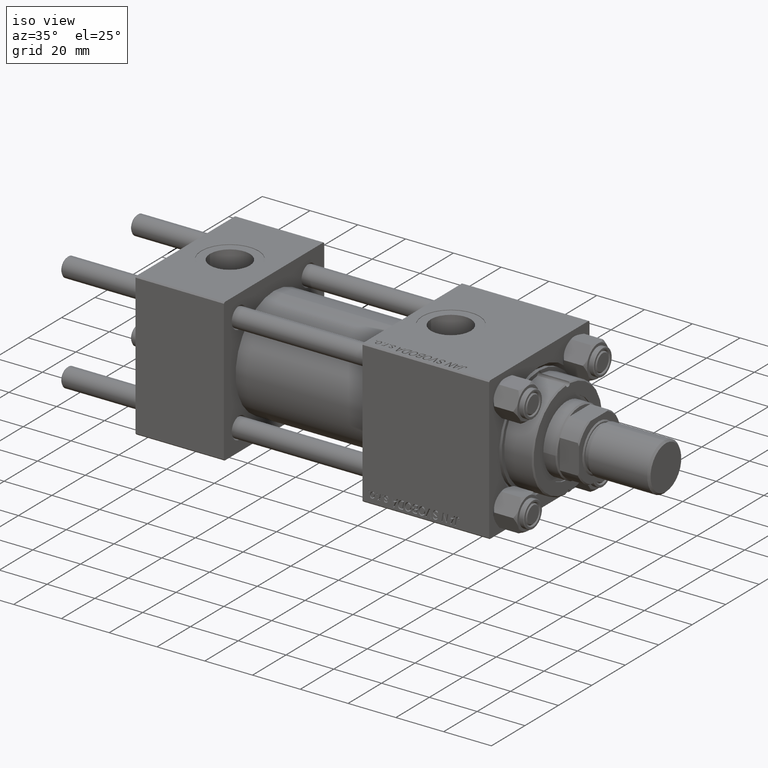
[diagram: clean part render]
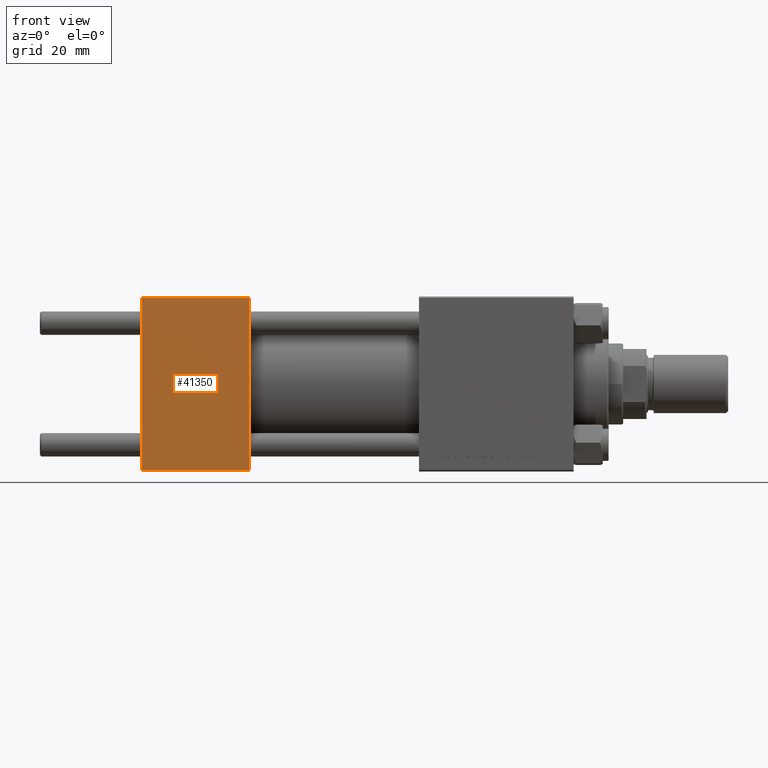
[diagram: tour spotlight — one face highlighted and labeled with its STEP entity id]
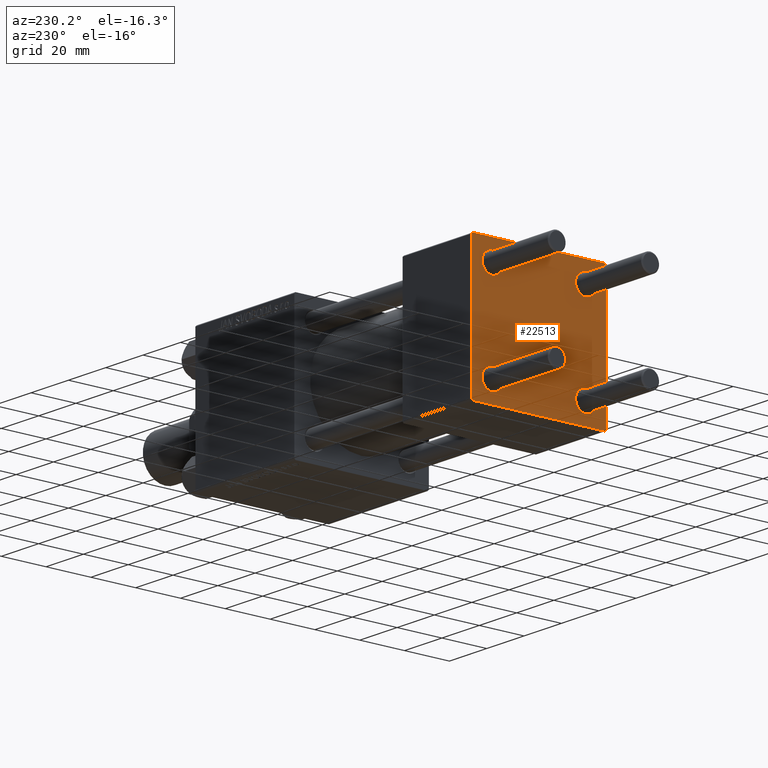
[diagram: tour spotlight — one face highlighted and labeled with its STEP entity id]
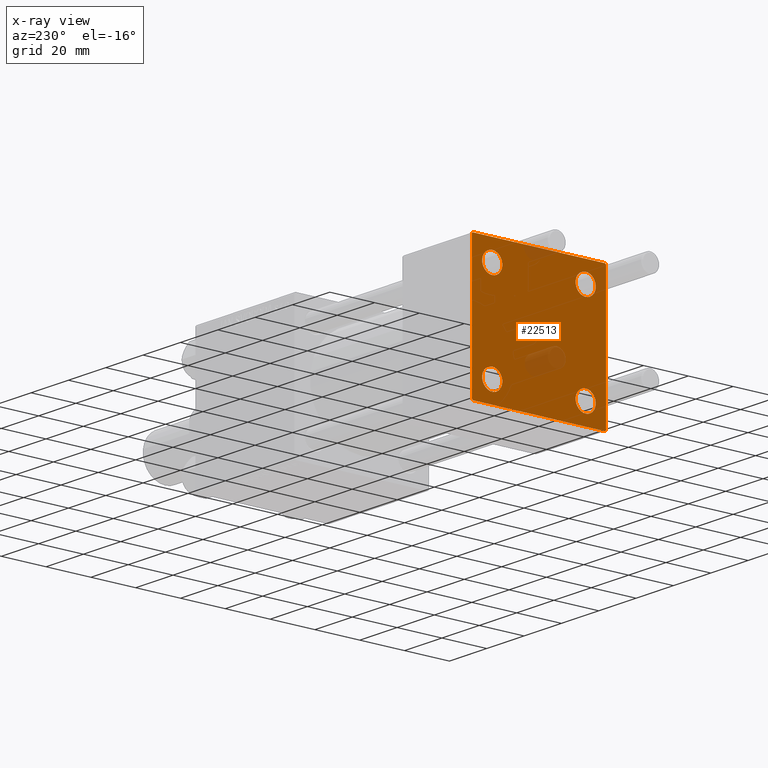
[diagram: x-ray of the same camera — body ghosted, this tour face saturated]
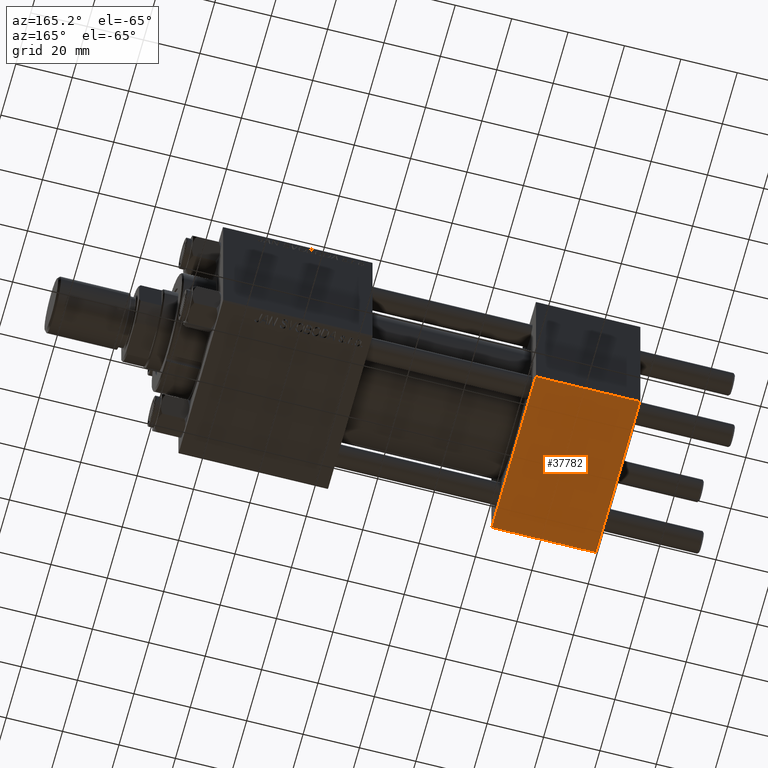
[diagram: tour spotlight — one face highlighted and labeled with its STEP entity id]
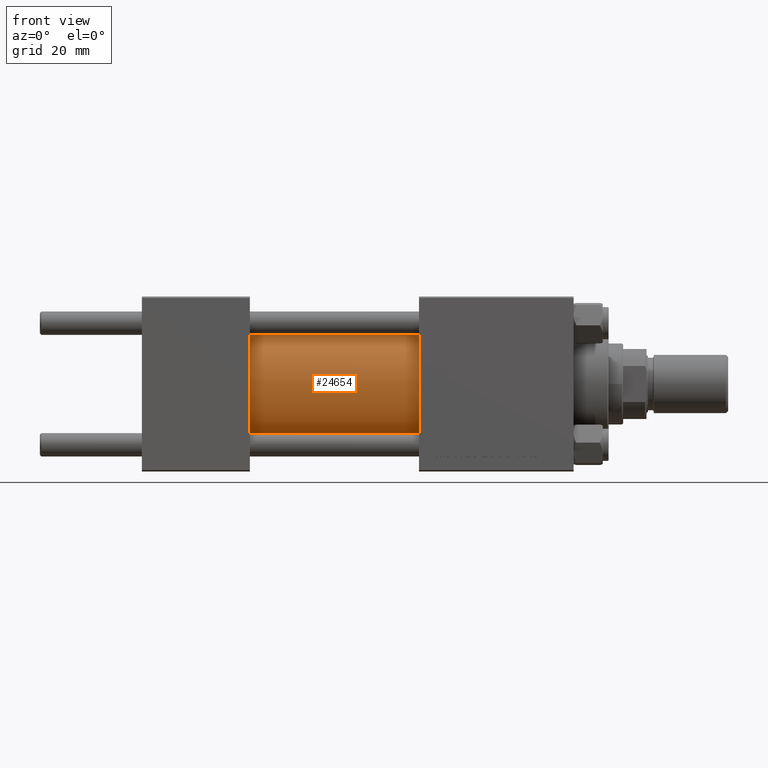
[diagram: tour spotlight — one face highlighted and labeled with its STEP entity id]
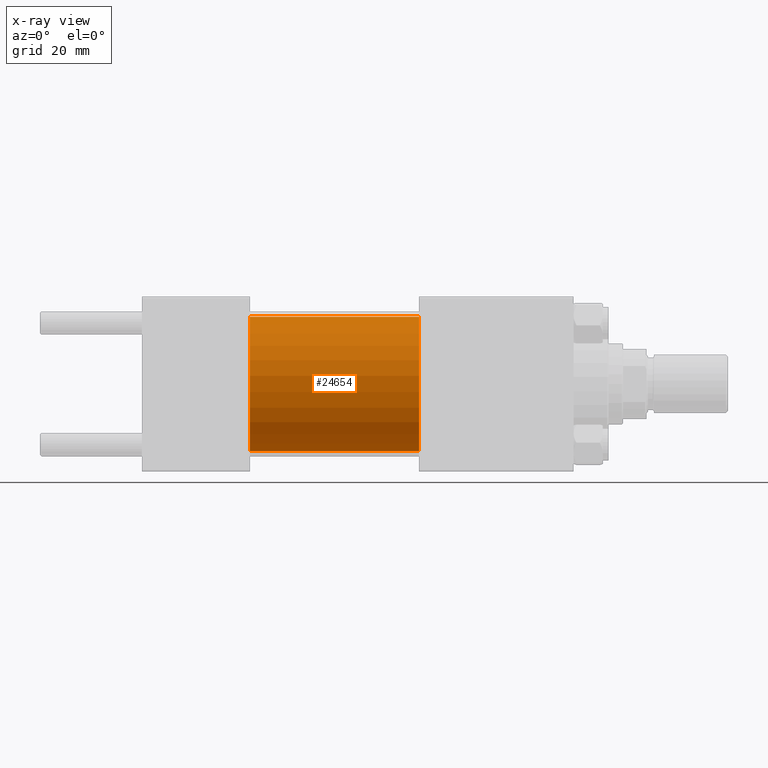
[diagram: x-ray of the same camera — body ghosted, this tour face saturated]
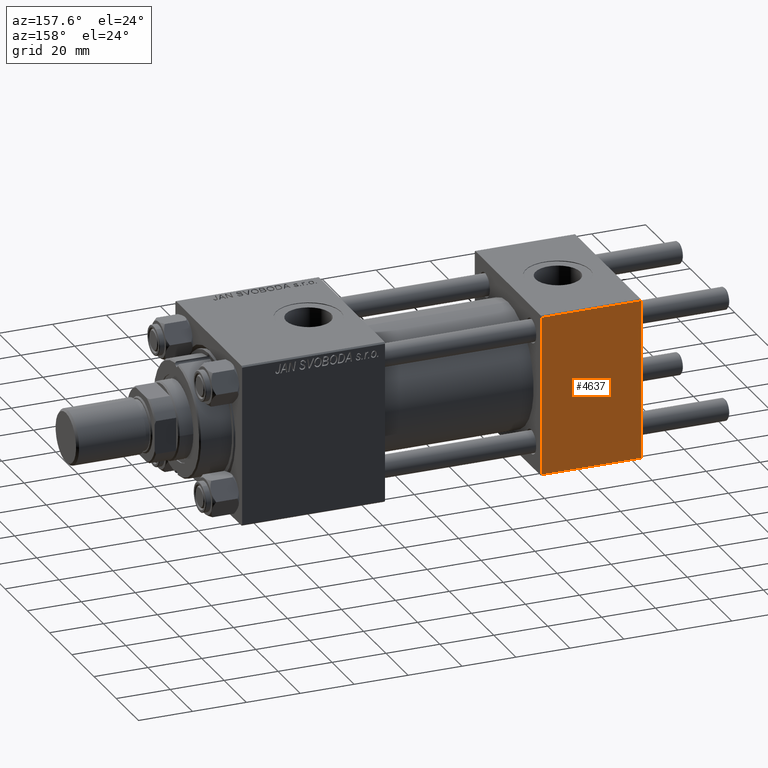
[diagram: tour spotlight — one face highlighted and labeled with its STEP entity id]
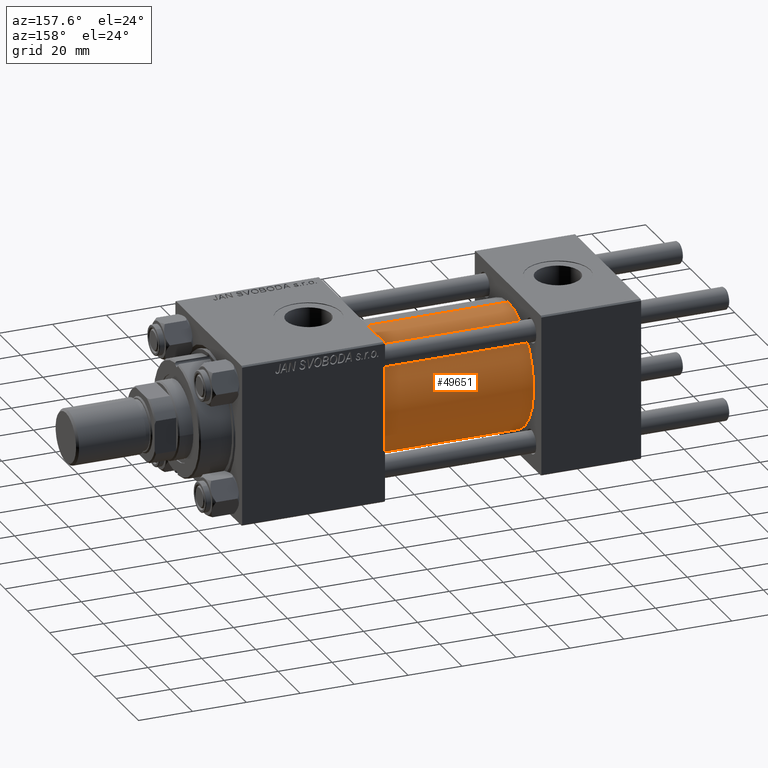
[diagram: tour spotlight — one face highlighted and labeled with its STEP entity id]
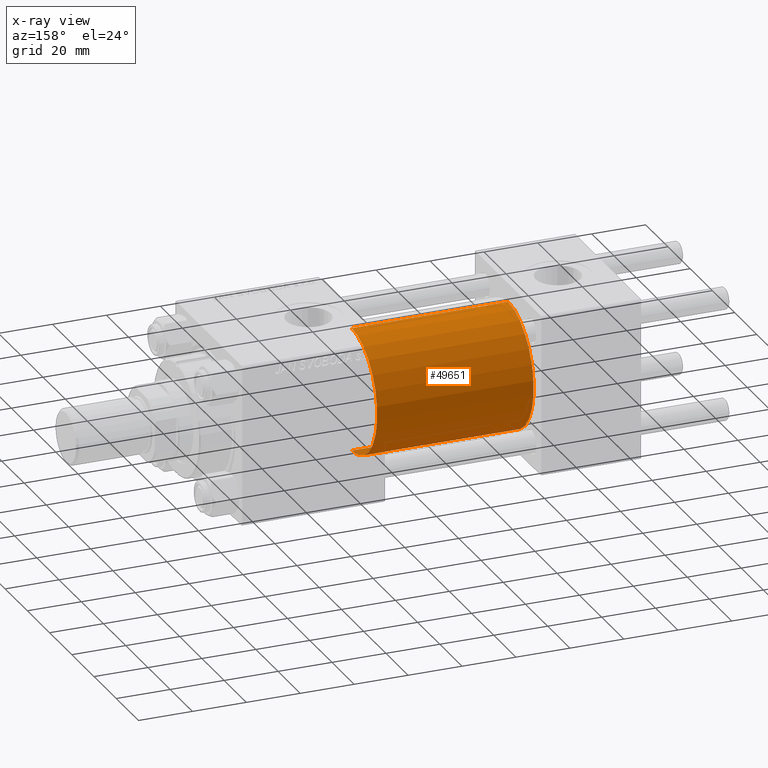
[diagram: x-ray of the same camera — body ghosted, this tour face saturated]
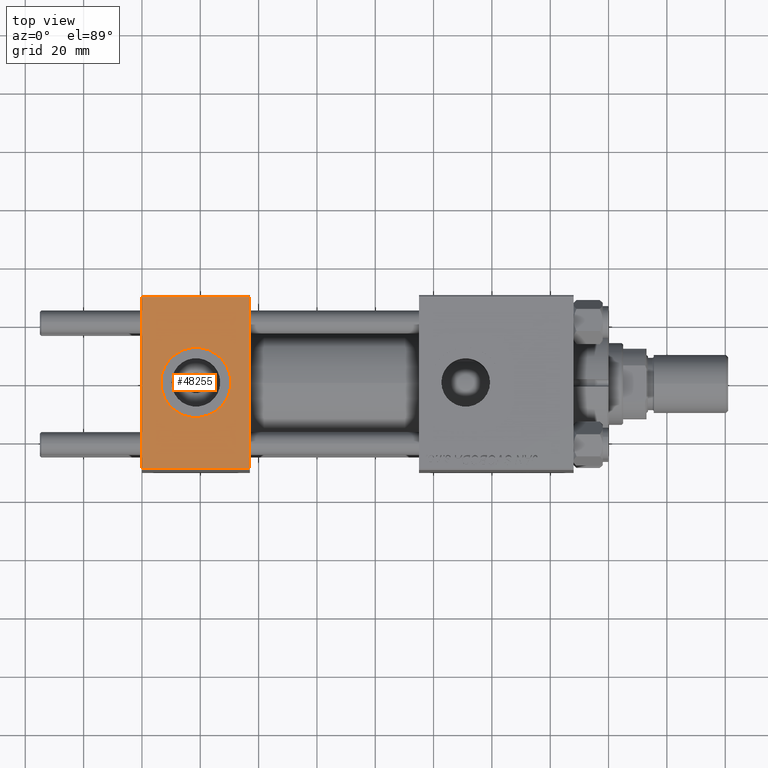
[diagram: tour spotlight — one face highlighted and labeled with its STEP entity id]
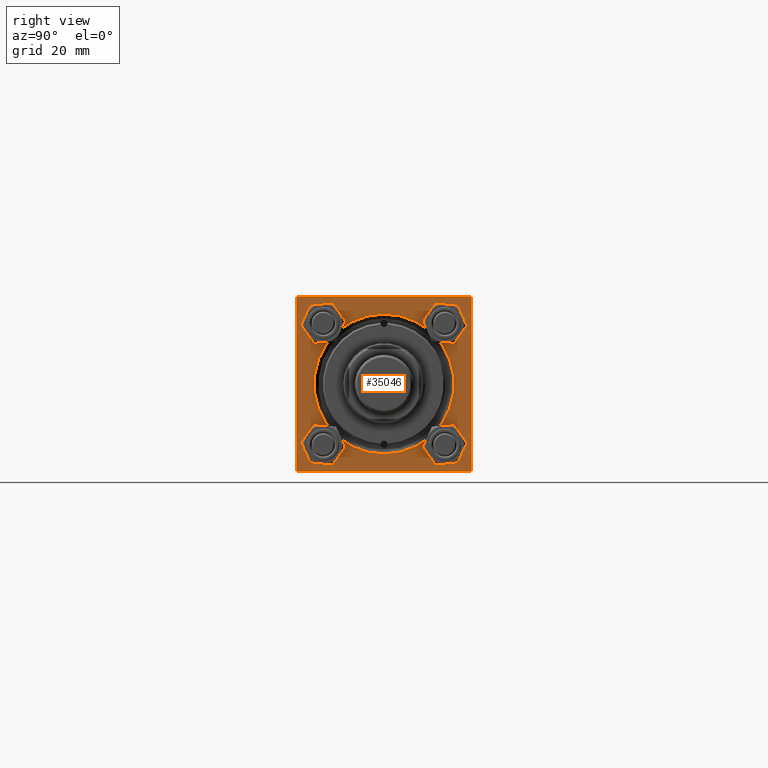
[diagram: tour spotlight — one face highlighted and labeled with its STEP entity id]
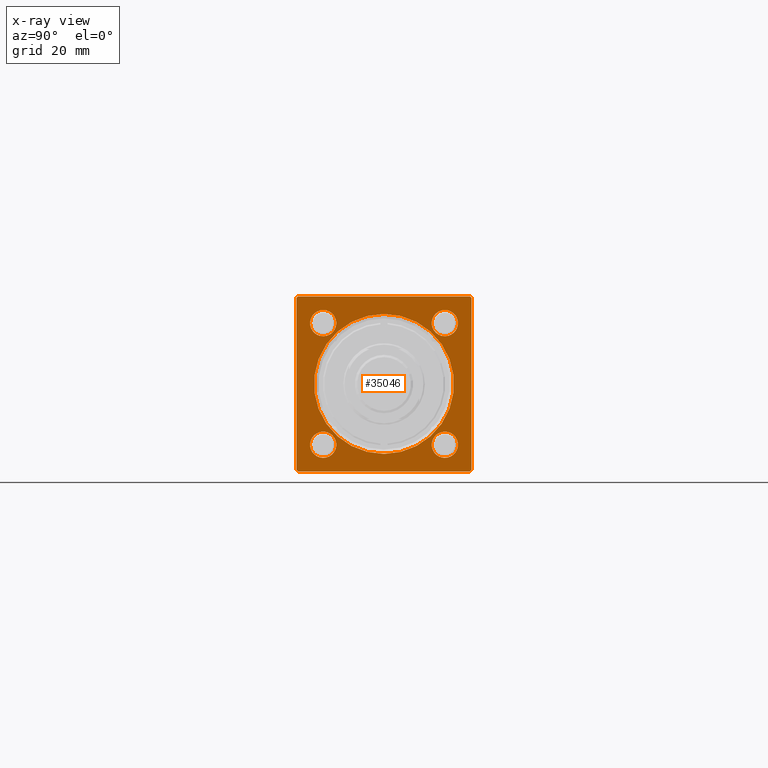
[diagram: x-ray of the same camera — body ghosted, this tour face saturated]
A machine part: a face-by-face anatomy tour. The part has 1155 B-rep faces; the first image is the clean iso view, then the 8 largest visible faces are spotlighted one at a time (largest first), each with its STEP entity span.

Face 1 — front view, entity #41350. In plain terms, the highlighted planar face has unit normal (0, 1, 0).
Definition (entity closure, byte-faithful):
#507 = DIRECTION ( 'NONE',  ( 0.000000000000000000, 0.000000000000000000, -1.000000000000000000 ) ) ;
#1686 = VERTEX_POINT ( 'NONE', #41008 ) ;
#1882 = FACE_OUTER_BOUND ( 'NONE', #29447, .T. ) ;
#2939 = ORIENTED_EDGE ( 'NONE', *, *, #29339, .F. ) ;
#3004 = DIRECTION ( 'NONE',  ( 1.000000000000000000, 0.000000000000000000, 0.000000000000000000 ) ) ;
#6061 = VECTOR ( 'NONE', #507, 1000.000000000000000 ) ;
#7319 = VERTEX_POINT ( 'NONE', #22423 ) ;
#8425 = CARTESIAN_POINT ( 'NONE',  ( 0.000000000000000000, -30.00000000000000000, 29.99999999999999289 ) ) ;
#9057 = CARTESIAN_POINT ( 'NONE',  ( 37.00000000000000000, -30.00000000000000000, 29.49999999999999289 ) ) ;
#11617 = ORIENTED_EDGE ( 'NONE', *, *, #37327, .T. ) ;
#11673 = CARTESIAN_POINT ( 'NONE',  ( 37.00000000000000000, -30.00000000000000000, -29.50000000000001776 ) ) ;
#14316 = AXIS2_PLACEMENT_3D ( 'NONE', #25167, #37436, #25912 ) ;
#14954 = VECTOR ( 'NONE', #43460, 1000.000000000000000 ) ;
#18518 = VECTOR ( 'NONE', #3004, 1000.000000000000000 ) ;
#21334 = LINE ( 'NONE', #9057, #46362 ) ;
#22423 = CARTESIAN_POINT ( 'NONE',  ( 0.000000000000000000, -30.00000000000000000, 29.49999999999999289 ) ) ;
#23619 = CARTESIAN_POINT ( 'NONE',  ( 0.000000000000000000, -30.00000000000000000, -29.50000000000001776 ) ) ;
#23800 = LINE ( 'NONE', #35554, #6061 ) ;
#25167 = CARTESIAN_POINT ( 'NONE',  ( 37.00000000000000000, -30.00000000000000000, 29.99999999999999289 ) ) ;
#25912 = DIRECTION ( 'NONE',  ( 0.000000000000000000, -0.000000000000000000, 1.000000000000000000 ) ) ;
#28465 = VERTEX_POINT ( 'NONE', #31593 ) ;
#29339 = EDGE_CURVE ( 'NONE', #28465, #1686, #23800, .T. ) ;
#29447 = EDGE_LOOP ( 'NONE', ( #11617, #41408, #2939, #39552 ) ) ;
#31593 = CARTESIAN_POINT ( 'NONE',  ( 37.00000000000000000, -30.00000000000000000, 29.49999999999999289 ) ) ;
#33848 = PLANE ( 'NONE',  #14316 ) ;
#35554 = CARTESIAN_POINT ( 'NONE',  ( 37.00000000000000000, -30.00000000000000000, 29.99999999999999289 ) ) ;
#37327 = EDGE_CURVE ( 'NONE', #7319, #47257, #50368, .T. ) ;
#37436 = DIRECTION ( 'NONE',  ( -0.000000000000000000, 1.000000000000000000, 0.000000000000000000 ) ) ;
#39552 = ORIENTED_EDGE ( 'NONE', *, *, #50322, .T. ) ;
#39742 = DIRECTION ( 'NONE',  ( -1.000000000000000000, 0.000000000000000000, 0.000000000000000000 ) ) ;
#41008 = CARTESIAN_POINT ( 'NONE',  ( 37.00000000000000000, -30.00000000000000000, -29.50000000000001776 ) ) ;
#41350 = ADVANCED_FACE ( 'NONE', ( #1882 ), #33848, .F. ) ;
#41408 = ORIENTED_EDGE ( 'NONE', *, *, #43940, .T. ) ;
#43460 = DIRECTION ( 'NONE',  ( 0.000000000000000000, 0.000000000000000000, -1.000000000000000000 ) ) ;
#43940 = EDGE_CURVE ( 'NONE', #47257, #1686, #50036, .T. ) ;
#46362 = VECTOR ( 'NONE', #39742, 1000.000000000000000 ) ;
#47257 = VERTEX_POINT ( 'NONE', #23619 ) ;
#50036 = LINE ( 'NONE', #11673, #18518 ) ;
#50322 = EDGE_CURVE ( 'NONE', #28465, #7319, #21334, .T. ) ;
#50368 = LINE ( 'NONE', #8425, #14954 ) ;

Face 2 — auxiliary view, entity #22513. An x-ray twin of the same camera follows (body ghosted, this face saturated) — the face is partly hidden behind the body. In plain terms, the highlighted planar face has unit normal (-1, 0, 0).
Definition (entity closure, byte-faithful):
#73 = DIRECTION ( 'NONE',  ( 1.000000000000000000, -0.000000000000000000, 0.000000000000000000 ) ) ;
#437 = CARTESIAN_POINT ( 'NONE',  ( 0.000000000000000000, -20.84999999999999076, 20.85000000000000497 ) ) ;
#1634 = DIRECTION ( 'NONE',  ( 0.000000000000000000, 0.000000000000000000, 1.000000000000000000 ) ) ;
#1811 = CARTESIAN_POINT ( 'NONE',  ( 0.000000000000000000, 29.49999999999997868, -30.00000000000000000 ) ) ;
#2761 = VECTOR ( 'NONE', #10723, 999.9999999999998863 ) ;
#2774 = LINE ( 'NONE', #42147, #10519 ) ;
#2924 = VERTEX_POINT ( 'NONE', #18373 ) ;
#3785 = AXIS2_PLACEMENT_3D ( 'NONE', #16691, #13351, #47620 ) ;
#3938 = ORIENTED_EDGE ( 'NONE', *, *, #30027, .T. ) ;
#3949 = VERTEX_POINT ( 'NONE', #35991 ) ;
#3968 = ORIENTED_EDGE ( 'NONE', *, *, #26835, .T. ) ;
#4381 = ORIENTED_EDGE ( 'NONE', *, *, #21127, .F. ) ;
#4415 = CARTESIAN_POINT ( 'NONE',  ( 0.000000000000000000, -20.84999999999999076, -20.85000000000000497 ) ) ;
#5123 = EDGE_CURVE ( 'NONE', #40123, #2924, #2774, .T. ) ;
#5202 = CARTESIAN_POINT ( 'NONE',  ( 0.000000000000000000, -29.50000000000000000, -30.00000000000000711 ) ) ;
#5411 = ORIENTED_EDGE ( 'NONE', *, *, #5669, .T. ) ;
#5508 = CARTESIAN_POINT ( 'NONE',  ( 0.000000000000000000, -20.84999999999999076, 16.34999999999998721 ) ) ;
#5553 = DIRECTION ( 'NONE',  ( 1.000000000000000000, -0.000000000000000000, 0.000000000000000000 ) ) ;
#5647 = ORIENTED_EDGE ( 'NONE', *, *, #37327, .F. ) ;
#5669 = EDGE_CURVE ( 'NONE', #26018, #47257, #49198, .T. ) ;
#5789 = FACE_BOUND ( 'NONE', #45599, .T. ) ;
#5791 = EDGE_CURVE ( 'NONE', #31264, #41874, #30916, .T. ) ;
#6641 = CARTESIAN_POINT ( 'NONE',  ( 0.000000000000000000, 29.74999999999957723, -29.75000000000040501 ) ) ;
#6757 = LINE ( 'NONE', #34371, #21293 ) ;
#7146 = EDGE_LOOP ( 'NONE', ( #35616, #15043, #26856, #5411, #5647, #47945, #4381, #43029 ) ) ;
#7319 = VERTEX_POINT ( 'NONE', #22423 ) ;
#7497 = DIRECTION ( 'NONE',  ( -0.000000000000000000, 0.7071067811865474617, 0.7071067811865474617 ) ) ;
#7545 = AXIS2_PLACEMENT_3D ( 'NONE', #15461, #43327, #46420 ) ;
#7582 = DIRECTION ( 'NONE',  ( 1.000000000000000000, -0.000000000000000000, 0.000000000000000000 ) ) ;
#8425 = CARTESIAN_POINT ( 'NONE',  ( 0.000000000000000000, -30.00000000000000000, 29.99999999999999289 ) ) ;
#8467 = DIRECTION ( 'NONE',  ( 1.000000000000000000, -0.000000000000000000, 0.000000000000000000 ) ) ;
#8691 = VECTOR ( 'NONE', #7497, 1000.000000000000114 ) ;
#9632 = CARTESIAN_POINT ( 'NONE',  ( 0.000000000000000000, 0.000000000000000000, 0.000000000000000000 ) ) ;
#9693 = CARTESIAN_POINT ( 'NONE',  ( 0.000000000000000000, 20.84999999999999787, -16.34999999999998366 ) ) ;
#9726 = DIRECTION ( 'NONE',  ( 0.000000000000000000, 0.000000000000000000, 1.000000000000000000 ) ) ;
#9798 = AXIS2_PLACEMENT_3D ( 'NONE', #437, #5553, #24223 ) ;
#10135 = FACE_BOUND ( 'NONE', #35816, .T. ) ;
#10391 = EDGE_LOOP ( 'NONE', ( #46803, #3938 ) ) ;
#10519 = VECTOR ( 'NONE', #49310, 1000.000000000000114 ) ;
#10723 = DIRECTION ( 'NONE',  ( -0.000000000000000000, -0.7071067811865574537, -0.7071067811865376918 ) ) ;
#12640 = CARTESIAN_POINT ( 'NONE',  ( 0.000000000000000000, 29.99999999999999289, 30.00000000000000000 ) ) ;
#13054 = CIRCLE ( 'NONE', #9798, 4.500000000000017764 ) ;
#13090 = VECTOR ( 'NONE', #28247, 1000.000000000000000 ) ;
#13246 = ORIENTED_EDGE ( 'NONE', *, *, #30726, .T. ) ;
#13351 = DIRECTION ( 'NONE',  ( 1.000000000000000000, -0.000000000000000000, 0.000000000000000000 ) ) ;
#13441 = DIRECTION ( 'NONE',  ( -0.000000000000000000, 0.000000000000000000, 1.000000000000000000 ) ) ;
#14136 = CARTESIAN_POINT ( 'NONE',  ( 0.000000000000000000, 29.49999999999999289, 30.00000000000000000 ) ) ;
#14176 = DIRECTION ( 'NONE',  ( 0.000000000000000000, 0.000000000000000000, -1.000000000000000000 ) ) ;
#14456 = PLANE ( 'NONE',  #44176 ) ;
#14662 = ORIENTED_EDGE ( 'NONE', *, *, #26377, .T. ) ;
#14666 = CARTESIAN_POINT ( 'NONE',  ( 0.000000000000000000, 29.99999999999999289, -30.00000000000000000 ) ) ;
#14954 = VECTOR ( 'NONE', #43460, 1000.000000000000000 ) ;
#15043 = ORIENTED_EDGE ( 'NONE', *, *, #29461, .T. ) ;
#15044 = AXIS2_PLACEMENT_3D ( 'NONE', #16955, #7582, #39285 ) ;
#15461 = CARTESIAN_POINT ( 'NONE',  ( 0.000000000000000000, 20.84999999999999787, -20.85000000000000142 ) ) ;
#16691 = CARTESIAN_POINT ( 'NONE',  ( 0.000000000000000000, -20.84999999999999076, -20.85000000000000497 ) ) ;
#16955 = CARTESIAN_POINT ( 'NONE',  ( 0.000000000000000000, 20.84999999999999787, -20.85000000000000142 ) ) ;
#17125 = CARTESIAN_POINT ( 'NONE',  ( 0.000000000000000000, 20.84999999999999787, 20.85000000000000142 ) ) ;
#17515 = EDGE_CURVE ( 'NONE', #2924, #42840, #6757, .T. ) ;
#17623 = EDGE_CURVE ( 'NONE', #25595, #26018, #41799, .T. ) ;
#18047 = VECTOR ( 'NONE', #42294, 1000.000000000000000 ) ;
#18373 = CARTESIAN_POINT ( 'NONE',  ( 0.000000000000000000, 29.99999999999999289, 29.50000000000000000 ) ) ;
#18730 = CARTESIAN_POINT ( 'NONE',  ( 0.000000000000000000, -20.84999999999999076, -16.34999999999998721 ) ) ;
#19737 = EDGE_CURVE ( 'NONE', #23802, #32606, #13054, .T. ) ;
#21127 = EDGE_CURVE ( 'NONE', #40123, #46381, #44370, .T. ) ;
#21262 = CARTESIAN_POINT ( 'NONE',  ( 0.000000000000000000, -20.84999999999999076, 20.85000000000000497 ) ) ;
#21293 = VECTOR ( 'NONE', #14176, 1000.000000000000000 ) ;
#21390 = FACE_BOUND ( 'NONE', #10391, .T. ) ;
#22142 = FACE_BOUND ( 'NONE', #50098, .T. ) ;
#22423 = CARTESIAN_POINT ( 'NONE',  ( 0.000000000000000000, -30.00000000000000000, 29.49999999999999289 ) ) ;
#22513 = ADVANCED_FACE ( 'NONE', ( #10135, #21390, #5789, #22142, #40826 ), #14456, .T. ) ;
#22603 = CIRCLE ( 'NONE', #3785, 4.500000000000017764 ) ;
#22818 = EDGE_CURVE ( 'NONE', #41874, #31264, #22959, .T. ) ;
#22959 = CIRCLE ( 'NONE', #25419, 4.500000000000017764 ) ;
#23056 = CIRCLE ( 'NONE', #7545, 4.500000000000017764 ) ;
#23604 = LINE ( 'NONE', #38689, #8691 ) ;
#23619 = CARTESIAN_POINT ( 'NONE',  ( 0.000000000000000000, -30.00000000000000000, -29.50000000000001776 ) ) ;
#23749 = VERTEX_POINT ( 'NONE', #24440 ) ;
#23802 = VERTEX_POINT ( 'NONE', #5508 ) ;
#23894 = AXIS2_PLACEMENT_3D ( 'NONE', #21262, #8467, #36868 ) ;
#23950 = CARTESIAN_POINT ( 'NONE',  ( 0.000000000000000000, 20.84999999999999787, 16.34999999999998366 ) ) ;
#24223 = DIRECTION ( 'NONE',  ( 0.000000000000000000, 0.000000000000000000, 1.000000000000000000 ) ) ;
#24440 = CARTESIAN_POINT ( 'NONE',  ( 0.000000000000000000, 20.84999999999999787, -25.35000000000001918 ) ) ;
#25419 = AXIS2_PLACEMENT_3D ( 'NONE', #25916, #44596, #1634 ) ;
#25595 = VERTEX_POINT ( 'NONE', #1811 ) ;
#25916 = CARTESIAN_POINT ( 'NONE',  ( 0.000000000000000000, 20.84999999999999787, 20.85000000000000142 ) ) ;
#26018 = VERTEX_POINT ( 'NONE', #5202 ) ;
#26377 = EDGE_CURVE ( 'NONE', #32606, #23802, #41075, .T. ) ;
#26835 = EDGE_CURVE ( 'NONE', #23749, #43737, #23056, .T. ) ;
#26856 = ORIENTED_EDGE ( 'NONE', *, *, #17623, .T. ) ;
#27074 = ORIENTED_EDGE ( 'NONE', *, *, #22818, .T. ) ;
#28247 = DIRECTION ( 'NONE',  ( 0.000000000000000000, -1.000000000000000000, -1.156482317317871725E-16 ) ) ;
#29461 = EDGE_CURVE ( 'NONE', #42840, #25595, #33259, .T. ) ;
#29773 = CARTESIAN_POINT ( 'NONE',  ( 0.000000000000000000, -29.75000000000001066, -29.75000000000001066 ) ) ;
#30027 = EDGE_CURVE ( 'NONE', #3949, #35952, #49299, .T. ) ;
#30063 = DIRECTION ( 'NONE',  ( -1.000000000000000000, 0.000000000000000000, -0.000000000000000000 ) ) ;
#30123 = AXIS2_PLACEMENT_3D ( 'NONE', #17125, #37588, #9726 ) ;
#30726 = EDGE_CURVE ( 'NONE', #43737, #23749, #37138, .T. ) ;
#30916 = CIRCLE ( 'NONE', #30123, 4.500000000000017764 ) ;
#31264 = VERTEX_POINT ( 'NONE', #38597 ) ;
#31346 = AXIS2_PLACEMENT_3D ( 'NONE', #4415, #73, #32294 ) ;
#31634 = CARTESIAN_POINT ( 'NONE',  ( 0.000000000000000000, -20.84999999999999076, 25.35000000000002274 ) ) ;
#32294 = DIRECTION ( 'NONE',  ( 0.000000000000000000, 0.000000000000000000, 1.000000000000000000 ) ) ;
#32606 = VERTEX_POINT ( 'NONE', #31634 ) ;
#33259 = LINE ( 'NONE', #6641, #2761 ) ;
#33365 = DIRECTION ( 'NONE',  ( 0.000000000000000000, -0.7071067811865474617, 0.7071067811865474617 ) ) ;
#34371 = CARTESIAN_POINT ( 'NONE',  ( 0.000000000000000000, 29.99999999999999289, 30.00000000000000000 ) ) ;
#35616 = ORIENTED_EDGE ( 'NONE', *, *, #17515, .T. ) ;
#35816 = EDGE_LOOP ( 'NONE', ( #14662, #36262 ) ) ;
#35952 = VERTEX_POINT ( 'NONE', #18730 ) ;
#35991 = CARTESIAN_POINT ( 'NONE',  ( 0.000000000000000000, -20.84999999999999076, -25.35000000000002274 ) ) ;
#36262 = ORIENTED_EDGE ( 'NONE', *, *, #19737, .T. ) ;
#36868 = DIRECTION ( 'NONE',  ( 0.000000000000000000, 0.000000000000000000, 1.000000000000000000 ) ) ;
#37138 = CIRCLE ( 'NONE', #15044, 4.500000000000017764 ) ;
#37291 = ORIENTED_EDGE ( 'NONE', *, *, #5791, .T. ) ;
#37327 = EDGE_CURVE ( 'NONE', #7319, #47257, #50368, .T. ) ;
#37588 = DIRECTION ( 'NONE',  ( 1.000000000000000000, -0.000000000000000000, 0.000000000000000000 ) ) ;
#38597 = CARTESIAN_POINT ( 'NONE',  ( 0.000000000000000000, 20.84999999999999787, 25.35000000000001918 ) ) ;
#38689 = CARTESIAN_POINT ( 'NONE',  ( -0.000000000000000000, -29.74999999999999645, 29.74999999999999645 ) ) ;
#39206 = CARTESIAN_POINT ( 'NONE',  ( 0.000000000000000000, -29.49999999999998579, 29.99999999999999289 ) ) ;
#39285 = DIRECTION ( 'NONE',  ( 0.000000000000000000, 0.000000000000000000, 1.000000000000000000 ) ) ;
#40123 = VERTEX_POINT ( 'NONE', #14136 ) ;
#40826 = FACE_OUTER_BOUND ( 'NONE', #7146, .T. ) ;
#41075 = CIRCLE ( 'NONE', #23894, 4.500000000000017764 ) ;
#41560 = VECTOR ( 'NONE', #33365, 1000.000000000000114 ) ;
#41799 = LINE ( 'NONE', #14666, #18047 ) ;
#41874 = VERTEX_POINT ( 'NONE', #23950 ) ;
#42147 = CARTESIAN_POINT ( 'NONE',  ( 0.000000000000000000, 29.74999999999999645, 29.74999999999999645 ) ) ;
#42294 = DIRECTION ( 'NONE',  ( 0.000000000000000000, -1.000000000000000000, -1.156482317317871725E-16 ) ) ;
#42840 = VERTEX_POINT ( 'NONE', #47534 ) ;
#43029 = ORIENTED_EDGE ( 'NONE', *, *, #5123, .T. ) ;
#43327 = DIRECTION ( 'NONE',  ( 1.000000000000000000, -0.000000000000000000, 0.000000000000000000 ) ) ;
#43341 = EDGE_CURVE ( 'NONE', #7319, #46381, #23604, .T. ) ;
#43460 = DIRECTION ( 'NONE',  ( 0.000000000000000000, 0.000000000000000000, -1.000000000000000000 ) ) ;
#43737 = VERTEX_POINT ( 'NONE', #9693 ) ;
#44176 = AXIS2_PLACEMENT_3D ( 'NONE', #9632, #30063, #13441 ) ;
#44370 = LINE ( 'NONE', #12640, #13090 ) ;
#44596 = DIRECTION ( 'NONE',  ( 1.000000000000000000, -0.000000000000000000, 0.000000000000000000 ) ) ;
#45599 = EDGE_LOOP ( 'NONE', ( #13246, #3968 ) ) ;
#46381 = VERTEX_POINT ( 'NONE', #39206 ) ;
#46420 = DIRECTION ( 'NONE',  ( 0.000000000000000000, 0.000000000000000000, 1.000000000000000000 ) ) ;
#46803 = ORIENTED_EDGE ( 'NONE', *, *, #47309, .T. ) ;
#47257 = VERTEX_POINT ( 'NONE', #23619 ) ;
#47309 = EDGE_CURVE ( 'NONE', #35952, #3949, #22603, .T. ) ;
#47534 = CARTESIAN_POINT ( 'NONE',  ( 0.000000000000000000, 29.99999999999999289, -29.50000000000000000 ) ) ;
#47620 = DIRECTION ( 'NONE',  ( 0.000000000000000000, 0.000000000000000000, 1.000000000000000000 ) ) ;
#47945 = ORIENTED_EDGE ( 'NONE', *, *, #43341, .T. ) ;
#49198 = LINE ( 'NONE', #29773, #41560 ) ;
#49299 = CIRCLE ( 'NONE', #31346, 4.500000000000017764 ) ;
#49310 = DIRECTION ( 'NONE',  ( 0.000000000000000000, 0.7071067811865474617, -0.7071067811865474617 ) ) ;
#50098 = EDGE_LOOP ( 'NONE', ( #37291, #27074 ) ) ;
#50368 = LINE ( 'NONE', #8425, #14954 ) ;

Face 3 — auxiliary view, entity #37782. In plain terms, the highlighted planar face has unit normal (0, 0, -1).
Definition (entity closure, byte-faithful):
#930 = FACE_OUTER_BOUND ( 'NONE', #50050, .T. ) ;
#1497 = ORIENTED_EDGE ( 'NONE', *, *, #42479, .T. ) ;
#1501 = CARTESIAN_POINT ( 'NONE',  ( 37.00000000000000000, -29.50000000000000000, -30.00000000000000711 ) ) ;
#1811 = CARTESIAN_POINT ( 'NONE',  ( 0.000000000000000000, 29.49999999999997868, -30.00000000000000000 ) ) ;
#2382 = VECTOR ( 'NONE', #15884, 1000.000000000000000 ) ;
#5202 = CARTESIAN_POINT ( 'NONE',  ( 0.000000000000000000, -29.50000000000000000, -30.00000000000000711 ) ) ;
#14033 = EDGE_CURVE ( 'NONE', #25595, #45684, #42499, .T. ) ;
#14666 = CARTESIAN_POINT ( 'NONE',  ( 0.000000000000000000, 29.99999999999999289, -30.00000000000000000 ) ) ;
#14885 = CARTESIAN_POINT ( 'NONE',  ( 0.000000000000000000, -29.50000000000001066, -30.00000000000000711 ) ) ;
#15884 = DIRECTION ( 'NONE',  ( 1.000000000000000000, 0.000000000000000000, 0.000000000000000000 ) ) ;
#17623 = EDGE_CURVE ( 'NONE', #25595, #26018, #41799, .T. ) ;
#18047 = VECTOR ( 'NONE', #42294, 1000.000000000000000 ) ;
#18977 = CARTESIAN_POINT ( 'NONE',  ( 37.00000000000000000, 29.99999999999999289, -30.00000000000000000 ) ) ;
#19083 = ORIENTED_EDGE ( 'NONE', *, *, #14033, .T. ) ;
#19187 = CARTESIAN_POINT ( 'NONE',  ( 37.00000000000000000, 29.49999999999997868, -30.00000000000000000 ) ) ;
#19232 = VECTOR ( 'NONE', #43271, 1000.000000000000000 ) ;
#19235 = LINE ( 'NONE', #18977, #23334 ) ;
#23334 = VECTOR ( 'NONE', #46095, 1000.000000000000000 ) ;
#25595 = VERTEX_POINT ( 'NONE', #1811 ) ;
#26018 = VERTEX_POINT ( 'NONE', #5202 ) ;
#28306 = DIRECTION ( 'NONE',  ( 0.000000000000000000, 1.000000000000000000, 1.156482317317871725E-16 ) ) ;
#32144 = CARTESIAN_POINT ( 'NONE',  ( 37.00000000000000000, 29.99999999999999289, -30.00000000000000000 ) ) ;
#37782 = ADVANCED_FACE ( 'NONE', ( #930 ), #48501, .T. ) ;
#39509 = AXIS2_PLACEMENT_3D ( 'NONE', #32144, #40079, #28306 ) ;
#40079 = DIRECTION ( 'NONE',  ( 0.000000000000000000, 1.156482317317871725E-16, -1.000000000000000000 ) ) ;
#41799 = LINE ( 'NONE', #14666, #18047 ) ;
#42294 = DIRECTION ( 'NONE',  ( 0.000000000000000000, -1.000000000000000000, -1.156482317317871725E-16 ) ) ;
#42479 = EDGE_CURVE ( 'NONE', #50184, #26018, #46842, .T. ) ;
#42482 = EDGE_CURVE ( 'NONE', #45684, #50184, #19235, .T. ) ;
#42499 = LINE ( 'NONE', #47080, #2382 ) ;
#43271 = DIRECTION ( 'NONE',  ( -1.000000000000000000, 0.000000000000000000, 0.000000000000000000 ) ) ;
#45123 = ORIENTED_EDGE ( 'NONE', *, *, #17623, .F. ) ;
#45684 = VERTEX_POINT ( 'NONE', #19187 ) ;
#46095 = DIRECTION ( 'NONE',  ( 0.000000000000000000, -1.000000000000000000, -1.156482317317871725E-16 ) ) ;
#46842 = LINE ( 'NONE', #14885, #19232 ) ;
#47080 = CARTESIAN_POINT ( 'NONE',  ( 37.00000000000000000, 29.49999999999997868, -30.00000000000000000 ) ) ;
#48501 = PLANE ( 'NONE',  #39509 ) ;
#50050 = EDGE_LOOP ( 'NONE', ( #45123, #19083, #50497, #1497 ) ) ;
#50184 = VERTEX_POINT ( 'NONE', #1501 ) ;
#50497 = ORIENTED_EDGE ( 'NONE', *, *, #42482, .T. ) ;

Face 4 — front view, entity #24654. An x-ray twin of the same camera follows (body ghosted, this face saturated) — the face is partly hidden behind the body. In plain terms, the highlighted cylindrical surface (partial cylindrical patch) has radius 23 mm, axis along (-1, -0, -0).
Definition (entity closure, byte-faithful):
#922 = VERTEX_POINT ( 'NONE', #8219 ) ;
#1999 = VECTOR ( 'NONE', #28577, 1000.000000000000000 ) ;
#3017 = DIRECTION ( 'NONE',  ( 1.000000000000000000, -0.000000000000000000, 0.000000000000000000 ) ) ;
#3048 = EDGE_CURVE ( 'NONE', #922, #24578, #34011, .T. ) ;
#4867 = ORIENTED_EDGE ( 'NONE', *, *, #3048, .T. ) ;
#5049 = CARTESIAN_POINT ( 'NONE',  ( 95.00000000000000000, 2.816687638038911957E-15, -23.00000000000000000 ) ) ;
#6450 = DIRECTION ( 'NONE',  ( 1.000000000000000000, 0.000000000000000000, 0.000000000000000000 ) ) ;
#6906 = EDGE_CURVE ( 'NONE', #17350, #43282, #21770, .T. ) ;
#8219 = CARTESIAN_POINT ( 'NONE',  ( 37.00000000000000000, 0.000000000000000000, 23.00000000000000000 ) ) ;
#9527 = ORIENTED_EDGE ( 'NONE', *, *, #6906, .F. ) ;
#13489 = FACE_OUTER_BOUND ( 'NONE', #47956, .T. ) ;
#16495 = CARTESIAN_POINT ( 'NONE',  ( 95.00000000000000000, 0.000000000000000000, 23.00000000000000000 ) ) ;
#17350 = VERTEX_POINT ( 'NONE', #50253 ) ;
#18473 = AXIS2_PLACEMENT_3D ( 'NONE', #21794, #6450, #22292 ) ;
#19458 = ORIENTED_EDGE ( 'NONE', *, *, #34200, .F. ) ;
#21680 = DIRECTION ( 'NONE',  ( -1.000000000000000000, -0.000000000000000000, -0.000000000000000000 ) ) ;
#21770 = CIRCLE ( 'NONE', #18473, 23.00000000000000000 ) ;
#21794 = CARTESIAN_POINT ( 'NONE',  ( 95.00000000000000000, 0.000000000000000000, 0.000000000000000000 ) ) ;
#22292 = DIRECTION ( 'NONE',  ( 0.000000000000000000, 0.000000000000000000, -1.000000000000000000 ) ) ;
#23742 = EDGE_CURVE ( 'NONE', #17350, #922, #31849, .T. ) ;
#24578 = VERTEX_POINT ( 'NONE', #48278 ) ;
#24654 = ADVANCED_FACE ( 'NONE', ( #13489 ), #29100, .T. ) ;
#28577 = DIRECTION ( 'NONE',  ( -1.000000000000000000, -0.000000000000000000, -0.000000000000000000 ) ) ;
#29100 = CYLINDRICAL_SURFACE ( 'NONE', #36062, 23.00000000000000000 ) ;
#30631 = CARTESIAN_POINT ( 'NONE',  ( 37.00000000000000000, 0.000000000000000000, 0.000000000000000000 ) ) ;
#31849 = LINE ( 'NONE', #16495, #46676 ) ;
#34011 = CIRCLE ( 'NONE', #45479, 23.00000000000000000 ) ;
#34200 = EDGE_CURVE ( 'NONE', #43282, #24578, #48003, .T. ) ;
#35229 = DIRECTION ( 'NONE',  ( 0.000000000000000000, 0.000000000000000000, 1.000000000000000000 ) ) ;
#36062 = AXIS2_PLACEMENT_3D ( 'NONE', #44708, #21680, #47755 ) ;
#39450 = CARTESIAN_POINT ( 'NONE',  ( 95.00000000000000000, 2.816687638038911957E-15, -23.00000000000000000 ) ) ;
#43282 = VERTEX_POINT ( 'NONE', #39450 ) ;
#44272 = ORIENTED_EDGE ( 'NONE', *, *, #23742, .T. ) ;
#44378 = DIRECTION ( 'NONE',  ( -1.000000000000000000, -0.000000000000000000, -0.000000000000000000 ) ) ;
#44708 = CARTESIAN_POINT ( 'NONE',  ( 95.00000000000000000, 0.000000000000000000, 0.000000000000000000 ) ) ;
#45479 = AXIS2_PLACEMENT_3D ( 'NONE', #30631, #3017, #35229 ) ;
#46676 = VECTOR ( 'NONE', #44378, 1000.000000000000000 ) ;
#47755 = DIRECTION ( 'NONE',  ( 0.000000000000000000, 0.000000000000000000, 1.000000000000000000 ) ) ;
#47956 = EDGE_LOOP ( 'NONE', ( #19458, #9527, #44272, #4867 ) ) ;
#48003 = LINE ( 'NONE', #5049, #1999 ) ;
#48278 = CARTESIAN_POINT ( 'NONE',  ( 37.00000000000000000, 2.816687638038911957E-15, -23.00000000000000000 ) ) ;
#50253 = CARTESIAN_POINT ( 'NONE',  ( 95.00000000000000000, 0.000000000000000000, 23.00000000000000000 ) ) ;

Face 5 — auxiliary view, entity #4637. In plain terms, the highlighted planar face has unit normal (0, 1, 0).
Definition (entity closure, byte-faithful):
#1818 = DIRECTION ( 'NONE',  ( 0.000000000000000000, 0.000000000000000000, -1.000000000000000000 ) ) ;
#2924 = VERTEX_POINT ( 'NONE', #18373 ) ;
#3632 = DIRECTION ( 'NONE',  ( 0.000000000000000000, -0.000000000000000000, 1.000000000000000000 ) ) ;
#4637 = ADVANCED_FACE ( 'NONE', ( #11314 ), #26916, .T. ) ;
#5949 = LINE ( 'NONE', #41751, #31572 ) ;
#6757 = LINE ( 'NONE', #34371, #21293 ) ;
#6845 = ORIENTED_EDGE ( 'NONE', *, *, #41708, .T. ) ;
#7486 = DIRECTION ( 'NONE',  ( -0.000000000000000000, 1.000000000000000000, 0.000000000000000000 ) ) ;
#8347 = LINE ( 'NONE', #26341, #19197 ) ;
#8988 = CARTESIAN_POINT ( 'NONE',  ( 37.00000000000000000, 29.99999999999999289, 30.00000000000000000 ) ) ;
#9679 = EDGE_LOOP ( 'NONE', ( #25476, #6845, #48465, #22708 ) ) ;
#11314 = FACE_OUTER_BOUND ( 'NONE', #9679, .T. ) ;
#14176 = DIRECTION ( 'NONE',  ( 0.000000000000000000, 0.000000000000000000, -1.000000000000000000 ) ) ;
#16554 = VECTOR ( 'NONE', #1818, 1000.000000000000000 ) ;
#17515 = EDGE_CURVE ( 'NONE', #2924, #42840, #6757, .T. ) ;
#18373 = CARTESIAN_POINT ( 'NONE',  ( 0.000000000000000000, 29.99999999999999289, 29.50000000000000000 ) ) ;
#19197 = VECTOR ( 'NONE', #46535, 1000.000000000000000 ) ;
#20152 = AXIS2_PLACEMENT_3D ( 'NONE', #42513, #7486, #3632 ) ;
#21293 = VECTOR ( 'NONE', #14176, 1000.000000000000000 ) ;
#21545 = DIRECTION ( 'NONE',  ( 1.000000000000000000, 0.000000000000000000, 0.000000000000000000 ) ) ;
#22708 = ORIENTED_EDGE ( 'NONE', *, *, #47452, .T. ) ;
#24244 = CARTESIAN_POINT ( 'NONE',  ( 37.00000000000000000, 29.99999999999999289, 29.50000000000000000 ) ) ;
#24438 = VERTEX_POINT ( 'NONE', #24244 ) ;
#25476 = ORIENTED_EDGE ( 'NONE', *, *, #26322, .T. ) ;
#26322 = EDGE_CURVE ( 'NONE', #24438, #32150, #28418, .T. ) ;
#26341 = CARTESIAN_POINT ( 'NONE',  ( 37.00000000000000000, 29.99999999999999289, -29.50000000000000000 ) ) ;
#26916 = PLANE ( 'NONE',  #20152 ) ;
#28418 = LINE ( 'NONE', #8988, #16554 ) ;
#28726 = CARTESIAN_POINT ( 'NONE',  ( 37.00000000000000000, 29.99999999999999289, -29.50000000000000000 ) ) ;
#31572 = VECTOR ( 'NONE', #21545, 1000.000000000000000 ) ;
#32150 = VERTEX_POINT ( 'NONE', #28726 ) ;
#34371 = CARTESIAN_POINT ( 'NONE',  ( 0.000000000000000000, 29.99999999999999289, 30.00000000000000000 ) ) ;
#41708 = EDGE_CURVE ( 'NONE', #32150, #42840, #8347, .T. ) ;
#41751 = CARTESIAN_POINT ( 'NONE',  ( 37.00000000000000000, 29.99999999999999289, 29.50000000000000000 ) ) ;
#42513 = CARTESIAN_POINT ( 'NONE',  ( 37.00000000000000000, 29.99999999999999289, 30.00000000000000000 ) ) ;
#42840 = VERTEX_POINT ( 'NONE', #47534 ) ;
#46535 = DIRECTION ( 'NONE',  ( -1.000000000000000000, 0.000000000000000000, 0.000000000000000000 ) ) ;
#47452 = EDGE_CURVE ( 'NONE', #2924, #24438, #5949, .T. ) ;
#47534 = CARTESIAN_POINT ( 'NONE',  ( 0.000000000000000000, 29.99999999999999289, -29.50000000000000000 ) ) ;
#48465 = ORIENTED_EDGE ( 'NONE', *, *, #17515, .F. ) ;

Face 6 — auxiliary view, entity #49651. An x-ray twin of the same camera follows (body ghosted, this face saturated) — the face is partly hidden behind the body. In plain terms, the highlighted cylindrical surface (partial cylindrical patch) has radius 23 mm, axis along (-1, -0, -0).
Definition (entity closure, byte-faithful):
#922 = VERTEX_POINT ( 'NONE', #8219 ) ;
#1874 = DIRECTION ( 'NONE',  ( 1.000000000000000000, -0.000000000000000000, 0.000000000000000000 ) ) ;
#1883 = FACE_OUTER_BOUND ( 'NONE', #25733, .T. ) ;
#1999 = VECTOR ( 'NONE', #28577, 1000.000000000000000 ) ;
#2842 = CIRCLE ( 'NONE', #37165, 23.00000000000000000 ) ;
#4947 = EDGE_CURVE ( 'NONE', #43282, #17350, #25901, .T. ) ;
#5049 = CARTESIAN_POINT ( 'NONE',  ( 95.00000000000000000, 2.816687638038911957E-15, -23.00000000000000000 ) ) ;
#8184 = DIRECTION ( 'NONE',  ( 1.000000000000000000, 0.000000000000000000, 0.000000000000000000 ) ) ;
#8219 = CARTESIAN_POINT ( 'NONE',  ( 37.00000000000000000, 0.000000000000000000, 23.00000000000000000 ) ) ;
#9561 = CARTESIAN_POINT ( 'NONE',  ( 37.00000000000000000, 0.000000000000000000, 0.000000000000000000 ) ) ;
#10879 = ORIENTED_EDGE ( 'NONE', *, *, #4947, .F. ) ;
#16495 = CARTESIAN_POINT ( 'NONE',  ( 95.00000000000000000, 0.000000000000000000, 23.00000000000000000 ) ) ;
#17350 = VERTEX_POINT ( 'NONE', #50253 ) ;
#18242 = DIRECTION ( 'NONE',  ( -1.000000000000000000, -0.000000000000000000, -0.000000000000000000 ) ) ;
#18588 = AXIS2_PLACEMENT_3D ( 'NONE', #40767, #18242, #33849 ) ;
#20685 = CARTESIAN_POINT ( 'NONE',  ( 95.00000000000000000, 0.000000000000000000, 0.000000000000000000 ) ) ;
#20973 = AXIS2_PLACEMENT_3D ( 'NONE', #20685, #8184, #35287 ) ;
#23742 = EDGE_CURVE ( 'NONE', #17350, #922, #31849, .T. ) ;
#24578 = VERTEX_POINT ( 'NONE', #48278 ) ;
#25733 = EDGE_LOOP ( 'NONE', ( #10879, #30870, #43208, #38898 ) ) ;
#25901 = CIRCLE ( 'NONE', #20973, 23.00000000000000000 ) ;
#28577 = DIRECTION ( 'NONE',  ( -1.000000000000000000, -0.000000000000000000, -0.000000000000000000 ) ) ;
#30870 = ORIENTED_EDGE ( 'NONE', *, *, #34200, .T. ) ;
#31849 = LINE ( 'NONE', #16495, #46676 ) ;
#32041 = EDGE_CURVE ( 'NONE', #24578, #922, #2842, .T. ) ;
#33600 = CYLINDRICAL_SURFACE ( 'NONE', #18588, 23.00000000000000000 ) ;
#33849 = DIRECTION ( 'NONE',  ( 0.000000000000000000, 0.000000000000000000, 1.000000000000000000 ) ) ;
#34200 = EDGE_CURVE ( 'NONE', #43282, #24578, #48003, .T. ) ;
#35287 = DIRECTION ( 'NONE',  ( 0.000000000000000000, 0.000000000000000000, -1.000000000000000000 ) ) ;
#37165 = AXIS2_PLACEMENT_3D ( 'NONE', #9561, #1874, #47893 ) ;
#38898 = ORIENTED_EDGE ( 'NONE', *, *, #23742, .F. ) ;
#39450 = CARTESIAN_POINT ( 'NONE',  ( 95.00000000000000000, 2.816687638038911957E-15, -23.00000000000000000 ) ) ;
#40767 = CARTESIAN_POINT ( 'NONE',  ( 95.00000000000000000, 0.000000000000000000, 0.000000000000000000 ) ) ;
#43208 = ORIENTED_EDGE ( 'NONE', *, *, #32041, .T. ) ;
#43282 = VERTEX_POINT ( 'NONE', #39450 ) ;
#44378 = DIRECTION ( 'NONE',  ( -1.000000000000000000, -0.000000000000000000, -0.000000000000000000 ) ) ;
#46676 = VECTOR ( 'NONE', #44378, 1000.000000000000000 ) ;
#47893 = DIRECTION ( 'NONE',  ( 0.000000000000000000, 0.000000000000000000, 1.000000000000000000 ) ) ;
#48003 = LINE ( 'NONE', #5049, #1999 ) ;
#48278 = CARTESIAN_POINT ( 'NONE',  ( 37.00000000000000000, 2.816687638038911957E-15, -23.00000000000000000 ) ) ;
#49651 = ADVANCED_FACE ( 'NONE', ( #1883 ), #33600, .T. ) ;
#50253 = CARTESIAN_POINT ( 'NONE',  ( 95.00000000000000000, 0.000000000000000000, 23.00000000000000000 ) ) ;

Face 7 — top view, entity #48255. In plain terms, the highlighted planar face has unit normal (0, 0, -1).
Definition (entity closure, byte-faithful):
#97 = EDGE_CURVE ( 'NONE', #1448, #42371, #24220, .T. ) ;
#1448 = VERTEX_POINT ( 'NONE', #22193 ) ;
#2285 = ORIENTED_EDGE ( 'NONE', *, *, #97, .F. ) ;
#2623 = DIRECTION ( 'NONE',  ( 0.000000000000000000, 1.156482317317871725E-16, -1.000000000000000000 ) ) ;
#2815 = CIRCLE ( 'NONE', #18339, 12.00000000000000000 ) ;
#3956 = VERTEX_POINT ( 'NONE', #47735 ) ;
#4248 = ORIENTED_EDGE ( 'NONE', *, *, #16744, .T. ) ;
#5514 = CARTESIAN_POINT ( 'NONE',  ( 18.50000000000000000, -3.469446951953614978E-15, 29.99999999999999645 ) ) ;
#5629 = LINE ( 'NONE', #36318, #11162 ) ;
#5946 = VECTOR ( 'NONE', #14629, 1000.000000000000000 ) ;
#7570 = EDGE_CURVE ( 'NONE', #36612, #3956, #5629, .T. ) ;
#9616 = DIRECTION ( 'NONE',  ( 1.000000000000000000, 0.000000000000000000, 0.000000000000000000 ) ) ;
#10294 = FACE_OUTER_BOUND ( 'NONE', #49014, .T. ) ;
#10802 = CARTESIAN_POINT ( 'NONE',  ( 37.00000000000000000, -29.50000000000000000, 29.99999999999999289 ) ) ;
#11162 = VECTOR ( 'NONE', #36579, 1000.000000000000000 ) ;
#12640 = CARTESIAN_POINT ( 'NONE',  ( 0.000000000000000000, 29.99999999999999289, 30.00000000000000000 ) ) ;
#13090 = VECTOR ( 'NONE', #28247, 1000.000000000000000 ) ;
#14108 = DIRECTION ( 'NONE',  ( -1.000000000000000000, 0.000000000000000000, 0.000000000000000000 ) ) ;
#14136 = CARTESIAN_POINT ( 'NONE',  ( 0.000000000000000000, 29.49999999999999289, 30.00000000000000000 ) ) ;
#14436 = AXIS2_PLACEMENT_3D ( 'NONE', #16951, #32557, #28712 ) ;
#14629 = DIRECTION ( 'NONE',  ( 1.000000000000000000, 0.000000000000000000, 0.000000000000000000 ) ) ;
#16178 = ORIENTED_EDGE ( 'NONE', *, *, #7570, .F. ) ;
#16744 = EDGE_CURVE ( 'NONE', #36612, #40123, #32080, .T. ) ;
#16951 = CARTESIAN_POINT ( 'NONE',  ( 18.50000000000000000, -3.469446951953614978E-15, 29.99999999999999645 ) ) ;
#18339 = AXIS2_PLACEMENT_3D ( 'NONE', #5514, #36724, #9616 ) ;
#21127 = EDGE_CURVE ( 'NONE', #40123, #46381, #44370, .T. ) ;
#22193 = CARTESIAN_POINT ( 'NONE',  ( 30.50000000000000000, -3.469446951953614978E-15, 29.99999999999999645 ) ) ;
#24220 = CIRCLE ( 'NONE', #14436, 12.00000000000000000 ) ;
#25895 = PLANE ( 'NONE',  #34034 ) ;
#26146 = EDGE_CURVE ( 'NONE', #46381, #3956, #37433, .T. ) ;
#27806 = VECTOR ( 'NONE', #14108, 1000.000000000000000 ) ;
#28247 = DIRECTION ( 'NONE',  ( 0.000000000000000000, -1.000000000000000000, -1.156482317317871725E-16 ) ) ;
#28712 = DIRECTION ( 'NONE',  ( 1.000000000000000000, 0.000000000000000000, 0.000000000000000000 ) ) ;
#29003 = CARTESIAN_POINT ( 'NONE',  ( 37.00000000000000000, 29.49999999999999289, 30.00000000000000000 ) ) ;
#30130 = ORIENTED_EDGE ( 'NONE', *, *, #39043, .F. ) ;
#32080 = LINE ( 'NONE', #49144, #27806 ) ;
#32557 = DIRECTION ( 'NONE',  ( 0.000000000000000000, 0.000000000000000000, 1.000000000000000000 ) ) ;
#34034 = AXIS2_PLACEMENT_3D ( 'NONE', #41504, #2623, #47321 ) ;
#36318 = CARTESIAN_POINT ( 'NONE',  ( 37.00000000000000000, 29.99999999999999289, 30.00000000000000000 ) ) ;
#36579 = DIRECTION ( 'NONE',  ( 0.000000000000000000, -1.000000000000000000, -1.156482317317871725E-16 ) ) ;
#36612 = VERTEX_POINT ( 'NONE', #29003 ) ;
#36724 = DIRECTION ( 'NONE',  ( 0.000000000000000000, 0.000000000000000000, 1.000000000000000000 ) ) ;
#37433 = LINE ( 'NONE', #10802, #5946 ) ;
#39043 = EDGE_CURVE ( 'NONE', #42371, #1448, #2815, .T. ) ;
#39206 = CARTESIAN_POINT ( 'NONE',  ( 0.000000000000000000, -29.49999999999998579, 29.99999999999999289 ) ) ;
#40123 = VERTEX_POINT ( 'NONE', #14136 ) ;
#41504 = CARTESIAN_POINT ( 'NONE',  ( 37.00000000000000000, 29.99999999999999289, 30.00000000000000000 ) ) ;
#41647 = EDGE_LOOP ( 'NONE', ( #2285, #30130 ) ) ;
#42021 = CARTESIAN_POINT ( 'NONE',  ( 6.499999999999997335, -1.999870792976790833E-15, 29.99999999999999645 ) ) ;
#42371 = VERTEX_POINT ( 'NONE', #42021 ) ;
#44370 = LINE ( 'NONE', #12640, #13090 ) ;
#44924 = ORIENTED_EDGE ( 'NONE', *, *, #26146, .T. ) ;
#45336 = FACE_BOUND ( 'NONE', #41647, .T. ) ;
#46381 = VERTEX_POINT ( 'NONE', #39206 ) ;
#47278 = ORIENTED_EDGE ( 'NONE', *, *, #21127, .T. ) ;
#47321 = DIRECTION ( 'NONE',  ( 0.000000000000000000, 1.000000000000000000, 1.156482317317871725E-16 ) ) ;
#47735 = CARTESIAN_POINT ( 'NONE',  ( 37.00000000000000000, -29.49999999999998579, 29.99999999999999289 ) ) ;
#48255 = ADVANCED_FACE ( 'NONE', ( #45336, #10294 ), #25895, .F. ) ;
#49014 = EDGE_LOOP ( 'NONE', ( #47278, #44924, #16178, #4248 ) ) ;
#49144 = CARTESIAN_POINT ( 'NONE',  ( 0.000000000000000000, 29.49999999999999289, 30.00000000000000000 ) ) ;

Face 8 — right view, entity #35046. An x-ray twin of the same camera follows (body ghosted, this face saturated) — the face is partly hidden behind the body. In plain terms, the highlighted planar face has unit normal (-1, 0, 0).
Definition (entity closure, byte-faithful):
#883 = CARTESIAN_POINT ( 'NONE',  ( 148.0000000000000000, -29.50000000000000000, 29.99999999999999289 ) ) ;
#906 = CARTESIAN_POINT ( 'NONE',  ( 148.0000000000000000, 20.84999999999999787, 25.35000000000001918 ) ) ;
#1740 = EDGE_CURVE ( 'NONE', #23693, #16775, #6473, .T. ) ;
#1842 = CARTESIAN_POINT ( 'NONE',  ( 148.0000000000000000, 29.50000000000000000, 30.00000000000000000 ) ) ;
#2124 = ORIENTED_EDGE ( 'NONE', *, *, #34184, .T. ) ;
#2393 = VERTEX_POINT ( 'NONE', #39059 ) ;
#3222 = CARTESIAN_POINT ( 'NONE',  ( 148.0000000000000000, 20.84999999999999787, -16.34999999999998366 ) ) ;
#3308 = CARTESIAN_POINT ( 'NONE',  ( 148.0000000000000000, 0.000000000000000000, 0.000000000000000000 ) ) ;
#3623 = CARTESIAN_POINT ( 'NONE',  ( 148.0000000000000000, -20.84999999999999076, 25.35000000000002274 ) ) ;
#3648 = AXIS2_PLACEMENT_3D ( 'NONE', #12044, #42745, #47081 ) ;
#3786 = AXIS2_PLACEMENT_3D ( 'NONE', #23669, #27739, #39268 ) ;
#3978 = DIRECTION ( 'NONE',  ( -0.000000000000000000, 0.7071067811865474617, 0.7071067811865474617 ) ) ;
#4111 = CIRCLE ( 'NONE', #40038, 4.500000000000017764 ) ;
#4252 = CARTESIAN_POINT ( 'NONE',  ( 148.0000000000000000, 2.939152317953652628E-15, 24.00000000000003908 ) ) ;
#5131 = ORIENTED_EDGE ( 'NONE', *, *, #38667, .T. ) ;
#6131 = AXIS2_PLACEMENT_3D ( 'NONE', #3308, #14812, #50600 ) ;
#6427 = EDGE_CURVE ( 'NONE', #41398, #6957, #31538, .T. ) ;
#6473 = LINE ( 'NONE', #22812, #15178 ) ;
#6752 = CIRCLE ( 'NONE', #34524, 4.500000000000017764 ) ;
#6902 = FACE_BOUND ( 'NONE', #22510, .T. ) ;
#6903 = ORIENTED_EDGE ( 'NONE', *, *, #13104, .T. ) ;
#6957 = VERTEX_POINT ( 'NONE', #7189 ) ;
#7189 = CARTESIAN_POINT ( 'NONE',  ( 148.0000000000000000, -20.84999999999999076, 16.34999999999998721 ) ) ;
#7386 = CARTESIAN_POINT ( 'NONE',  ( 148.0000000000000000, 20.84999999999999787, -20.85000000000000142 ) ) ;
#7485 = EDGE_CURVE ( 'NONE', #47757, #39218, #20071, .T. ) ;
#7529 = VERTEX_POINT ( 'NONE', #32094 ) ;
#8073 = CIRCLE ( 'NONE', #37476, 24.00000000000003908 ) ;
#8230 = ORIENTED_EDGE ( 'NONE', *, *, #26836, .T. ) ;
#8503 = CIRCLE ( 'NONE', #26463, 4.500000000000017764 ) ;
#9185 = EDGE_CURVE ( 'NONE', #31140, #46967, #47127, .T. ) ;
#9429 = CARTESIAN_POINT ( 'NONE',  ( 148.0000000000000000, 30.00000000000000000, 30.00000000000000000 ) ) ;
#10353 = ORIENTED_EDGE ( 'NONE', *, *, #16821, .T. ) ;
#11961 = VECTOR ( 'NONE', #24394, 1000.000000000000000 ) ;
#12044 = CARTESIAN_POINT ( 'NONE',  ( 148.0000000000000000, 0.000000000000000000, 0.000000000000000000 ) ) ;
#12085 = VERTEX_POINT ( 'NONE', #3222 ) ;
#12177 = EDGE_CURVE ( 'NONE', #7529, #16543, #19487, .T. ) ;
#12717 = LINE ( 'NONE', #31924, #22443 ) ;
#13038 = VERTEX_POINT ( 'NONE', #31812 ) ;
#13104 = EDGE_CURVE ( 'NONE', #49120, #30624, #8073, .T. ) ;
#13165 = CARTESIAN_POINT ( 'NONE',  ( 148.0000000000000000, -29.50000000000000000, -30.00000000000000000 ) ) ;
#13184 = EDGE_LOOP ( 'NONE', ( #5131, #2124 ) ) ;
#13575 = ORIENTED_EDGE ( 'NONE', *, *, #9185, .T. ) ;
#13597 = CARTESIAN_POINT ( 'NONE',  ( 148.0000000000000000, 30.00000000000000000, -29.99999999999999289 ) ) ;
#13929 = DIRECTION ( 'NONE',  ( 0.000000000000000000, 0.000000000000000000, 1.000000000000000000 ) ) ;
#14087 = AXIS2_PLACEMENT_3D ( 'NONE', #19806, #34911, #39003 ) ;
#14812 = DIRECTION ( 'NONE',  ( -1.000000000000000000, 0.000000000000000000, -0.000000000000000000 ) ) ;
#15178 = VECTOR ( 'NONE', #38420, 1000.000000000000114 ) ;
#16065 = DIRECTION ( 'NONE',  ( -1.000000000000000000, 0.000000000000000000, -0.000000000000000000 ) ) ;
#16388 = ORIENTED_EDGE ( 'NONE', *, *, #40226, .T. ) ;
#16453 = LINE ( 'NONE', #19795, #11961 ) ;
#16456 = DIRECTION ( 'NONE',  ( -1.000000000000000000, 0.000000000000000000, -0.000000000000000000 ) ) ;
#16543 = VERTEX_POINT ( 'NONE', #47169 ) ;
#16741 = CARTESIAN_POINT ( 'NONE',  ( 148.0000000000000000, -20.84999999999999076, -20.85000000000000497 ) ) ;
#16775 = VERTEX_POINT ( 'NONE', #41485 ) ;
#16821 = EDGE_CURVE ( 'NONE', #2393, #44566, #36890, .T. ) ;
#17441 = DIRECTION ( 'NONE',  ( 0.000000000000000000, -0.7071067811865474617, 0.7071067811865474617 ) ) ;
#17970 = ORIENTED_EDGE ( 'NONE', *, *, #20283, .T. ) ;
#17995 = DIRECTION ( 'NONE',  ( 0.000000000000000000, 0.000000000000000000, 1.000000000000000000 ) ) ;
#18347 = VECTOR ( 'NONE', #33467, 1000.000000000000000 ) ;
#19156 = FACE_BOUND ( 'NONE', #13184, .T. ) ;
#19337 = VECTOR ( 'NONE', #3978, 1000.000000000000114 ) ;
#19487 = CIRCLE ( 'NONE', #24382, 4.500000000000017764 ) ;
#19795 = CARTESIAN_POINT ( 'NONE',  ( 148.0000000000000000, -30.00000000000000000, 29.99999999999999289 ) ) ;
#19806 = CARTESIAN_POINT ( 'NONE',  ( 148.0000000000000000, -20.84999999999999076, 20.85000000000000497 ) ) ;
#19939 = CIRCLE ( 'NONE', #31380, 4.500000000000017764 ) ;
#20071 = LINE ( 'NONE', #39025, #19337 ) ;
#20283 = EDGE_CURVE ( 'NONE', #43941, #28881, #4111, .T. ) ;
#21245 = CARTESIAN_POINT ( 'NONE',  ( 148.0000000000000000, -30.00000000000000000, -29.49999999999998579 ) ) ;
#22327 = CARTESIAN_POINT ( 'NONE',  ( 148.0000000000000000, 29.50000000000000000, 30.00000000000000000 ) ) ;
#22379 = ORIENTED_EDGE ( 'NONE', *, *, #26093, .T. ) ;
#22443 = VECTOR ( 'NONE', #48791, 1000.000000000000000 ) ;
#22490 = ORIENTED_EDGE ( 'NONE', *, *, #7485, .T. ) ;
#22510 = EDGE_LOOP ( 'NONE', ( #16388, #6903 ) ) ;
#22812 = CARTESIAN_POINT ( 'NONE',  ( 148.0000000000000000, -30.00000000000000000, 29.49999999999999289 ) ) ;
#23099 = CIRCLE ( 'NONE', #27173, 4.500000000000017764 ) ;
#23113 = CARTESIAN_POINT ( 'NONE',  ( 148.0000000000000000, -29.50000000000000000, -30.00000000000000000 ) ) ;
#23669 = CARTESIAN_POINT ( 'NONE',  ( 148.0000000000000000, -20.84999999999999076, 20.85000000000000497 ) ) ;
#23693 = VERTEX_POINT ( 'NONE', #883 ) ;
#23888 = CARTESIAN_POINT ( 'NONE',  ( 148.0000000000000000, 0.000000000000000000, 0.000000000000000000 ) ) ;
#23914 = DIRECTION ( 'NONE',  ( -1.000000000000000000, 0.000000000000000000, -0.000000000000000000 ) ) ;
#24382 = AXIS2_PLACEMENT_3D ( 'NONE', #16741, #23914, #32087 ) ;
#24394 = DIRECTION ( 'NONE',  ( 0.000000000000000000, 0.000000000000000000, -1.000000000000000000 ) ) ;
#24648 = CARTESIAN_POINT ( 'NONE',  ( 148.0000000000000000, 20.84999999999999787, 20.85000000000000142 ) ) ;
#25584 = CARTESIAN_POINT ( 'NONE',  ( 148.0000000000000000, 29.50000000000000000, -29.99999999999999289 ) ) ;
#25770 = ORIENTED_EDGE ( 'NONE', *, *, #6427, .T. ) ;
#25941 = CARTESIAN_POINT ( 'NONE',  ( 148.0000000000000000, 20.84999999999999787, 20.85000000000000142 ) ) ;
#26093 = EDGE_CURVE ( 'NONE', #28881, #43941, #6752, .T. ) ;
#26463 = AXIS2_PLACEMENT_3D ( 'NONE', #35507, #16065, #43673 ) ;
#26576 = FACE_BOUND ( 'NONE', #31790, .T. ) ;
#26836 = EDGE_CURVE ( 'NONE', #6957, #41398, #36129, .T. ) ;
#27173 = AXIS2_PLACEMENT_3D ( 'NONE', #38206, #37960, #30517 ) ;
#27739 = DIRECTION ( 'NONE',  ( -1.000000000000000000, 0.000000000000000000, -0.000000000000000000 ) ) ;
#27815 = EDGE_CURVE ( 'NONE', #16543, #7529, #23099, .T. ) ;
#27823 = ORIENTED_EDGE ( 'NONE', *, *, #44282, .T. ) ;
#28881 = VERTEX_POINT ( 'NONE', #40736 ) ;
#28917 = ORIENTED_EDGE ( 'NONE', *, *, #35168, .T. ) ;
#30265 = ORIENTED_EDGE ( 'NONE', *, *, #12177, .T. ) ;
#30517 = DIRECTION ( 'NONE',  ( 0.000000000000000000, 0.000000000000000000, 1.000000000000000000 ) ) ;
#30624 = VERTEX_POINT ( 'NONE', #45459 ) ;
#31140 = VERTEX_POINT ( 'NONE', #21245 ) ;
#31177 = FACE_OUTER_BOUND ( 'NONE', #33078, .T. ) ;
#31380 = AXIS2_PLACEMENT_3D ( 'NONE', #7386, #50314, #31407 ) ;
#31407 = DIRECTION ( 'NONE',  ( 0.000000000000000000, 0.000000000000000000, 1.000000000000000000 ) ) ;
#31473 = EDGE_CURVE ( 'NONE', #2393, #39218, #12717, .T. ) ;
#31538 = CIRCLE ( 'NONE', #3786, 4.500000000000017764 ) ;
#31790 = EDGE_LOOP ( 'NONE', ( #8230, #25770 ) ) ;
#31812 = CARTESIAN_POINT ( 'NONE',  ( 148.0000000000000000, 20.84999999999999787, -25.35000000000001918 ) ) ;
#31924 = CARTESIAN_POINT ( 'NONE',  ( 148.0000000000000000, 30.00000000000000000, 30.00000000000000000 ) ) ;
#32062 = DIRECTION ( 'NONE',  ( 0.000000000000000000, 0.000000000000000000, 1.000000000000000000 ) ) ;
#32087 = DIRECTION ( 'NONE',  ( 0.000000000000000000, 0.000000000000000000, 1.000000000000000000 ) ) ;
#32094 = CARTESIAN_POINT ( 'NONE',  ( 148.0000000000000000, -20.84999999999999076, -16.34999999999998721 ) ) ;
#32238 = EDGE_LOOP ( 'NONE', ( #37810, #30265 ) ) ;
#32775 = ORIENTED_EDGE ( 'NONE', *, *, #31473, .F. ) ;
#33078 = EDGE_LOOP ( 'NONE', ( #27823, #13575, #44261, #22490, #32775, #10353, #28917, #36229 ) ) ;
#33201 = VECTOR ( 'NONE', #41733, 1000.000000000000000 ) ;
#33467 = DIRECTION ( 'NONE',  ( 0.000000000000000000, -1.000000000000000000, -1.156482317317871478E-16 ) ) ;
#34111 = VECTOR ( 'NONE', #46388, 1000.000000000000114 ) ;
#34184 = EDGE_CURVE ( 'NONE', #12085, #13038, #19939, .T. ) ;
#34524 = AXIS2_PLACEMENT_3D ( 'NONE', #24648, #40240, #17995 ) ;
#34911 = DIRECTION ( 'NONE',  ( -1.000000000000000000, 0.000000000000000000, -0.000000000000000000 ) ) ;
#35046 = ADVANCED_FACE ( 'NONE', ( #46055, #19156, #45778, #26576, #6902, #31177 ), #39111, .F. ) ;
#35168 = EDGE_CURVE ( 'NONE', #44566, #23693, #48539, .T. ) ;
#35507 = CARTESIAN_POINT ( 'NONE',  ( 148.0000000000000000, 20.84999999999999787, -20.85000000000000142 ) ) ;
#35994 = VECTOR ( 'NONE', #17441, 1000.000000000000114 ) ;
#36129 = CIRCLE ( 'NONE', #14087, 4.500000000000017764 ) ;
#36229 = ORIENTED_EDGE ( 'NONE', *, *, #1740, .T. ) ;
#36890 = LINE ( 'NONE', #1842, #35994 ) ;
#37476 = AXIS2_PLACEMENT_3D ( 'NONE', #23888, #16456, #32062 ) ;
#37538 = EDGE_LOOP ( 'NONE', ( #22379, #17970 ) ) ;
#37810 = ORIENTED_EDGE ( 'NONE', *, *, #27815, .T. ) ;
#37960 = DIRECTION ( 'NONE',  ( -1.000000000000000000, 0.000000000000000000, -0.000000000000000000 ) ) ;
#38206 = CARTESIAN_POINT ( 'NONE',  ( 148.0000000000000000, -20.84999999999999076, -20.85000000000000497 ) ) ;
#38420 = DIRECTION ( 'NONE',  ( -0.000000000000000000, -0.7071067811865474617, -0.7071067811865474617 ) ) ;
#38667 = EDGE_CURVE ( 'NONE', #13038, #12085, #8503, .T. ) ;
#39003 = DIRECTION ( 'NONE',  ( 0.000000000000000000, 0.000000000000000000, 1.000000000000000000 ) ) ;
#39025 = CARTESIAN_POINT ( 'NONE',  ( 148.0000000000000000, 30.00000000000000000, -29.49999999999999289 ) ) ;
#39059 = CARTESIAN_POINT ( 'NONE',  ( 148.0000000000000000, 30.00000000000000000, 29.50000000000000000 ) ) ;
#39111 = PLANE ( 'NONE',  #6131 ) ;
#39218 = VERTEX_POINT ( 'NONE', #39474 ) ;
#39268 = DIRECTION ( 'NONE',  ( 0.000000000000000000, 0.000000000000000000, 1.000000000000000000 ) ) ;
#39474 = CARTESIAN_POINT ( 'NONE',  ( 148.0000000000000000, 30.00000000000000000, -29.49999999999997868 ) ) ;
#40038 = AXIS2_PLACEMENT_3D ( 'NONE', #25941, #48955, #13929 ) ;
#40226 = EDGE_CURVE ( 'NONE', #30624, #49120, #45323, .T. ) ;
#40240 = DIRECTION ( 'NONE',  ( -1.000000000000000000, 0.000000000000000000, -0.000000000000000000 ) ) ;
#40736 = CARTESIAN_POINT ( 'NONE',  ( 148.0000000000000000, 20.84999999999999787, 16.34999999999998366 ) ) ;
#41398 = VERTEX_POINT ( 'NONE', #3623 ) ;
#41483 = LINE ( 'NONE', #13597, #33201 ) ;
#41485 = CARTESIAN_POINT ( 'NONE',  ( 148.0000000000000000, -30.00000000000000000, 29.49999999999999289 ) ) ;
#41733 = DIRECTION ( 'NONE',  ( 0.000000000000000000, -1.000000000000000000, -1.156482317317871478E-16 ) ) ;
#42745 = DIRECTION ( 'NONE',  ( -1.000000000000000000, 0.000000000000000000, -0.000000000000000000 ) ) ;
#43560 = EDGE_CURVE ( 'NONE', #47757, #46967, #41483, .T. ) ;
#43673 = DIRECTION ( 'NONE',  ( 0.000000000000000000, 0.000000000000000000, 1.000000000000000000 ) ) ;
#43941 = VERTEX_POINT ( 'NONE', #906 ) ;
#44261 = ORIENTED_EDGE ( 'NONE', *, *, #43560, .F. ) ;
#44282 = EDGE_CURVE ( 'NONE', #16775, #31140, #16453, .T. ) ;
#44566 = VERTEX_POINT ( 'NONE', #22327 ) ;
#45323 = CIRCLE ( 'NONE', #3648, 24.00000000000003908 ) ;
#45459 = CARTESIAN_POINT ( 'NONE',  ( 148.0000000000000000, 0.000000000000000000, -24.00000000000003908 ) ) ;
#45778 = FACE_BOUND ( 'NONE', #37538, .T. ) ;
#46055 = FACE_BOUND ( 'NONE', #32238, .T. ) ;
#46388 = DIRECTION ( 'NONE',  ( 0.000000000000000000, 0.7071067811865474617, -0.7071067811865474617 ) ) ;
#46967 = VERTEX_POINT ( 'NONE', #13165 ) ;
#47081 = DIRECTION ( 'NONE',  ( 0.000000000000000000, 0.000000000000000000, 1.000000000000000000 ) ) ;
#47127 = LINE ( 'NONE', #23113, #34111 ) ;
#47169 = CARTESIAN_POINT ( 'NONE',  ( 148.0000000000000000, -20.84999999999999076, -25.35000000000002274 ) ) ;
#47757 = VERTEX_POINT ( 'NONE', #25584 ) ;
#48539 = LINE ( 'NONE', #9429, #18347 ) ;
#48791 = DIRECTION ( 'NONE',  ( 0.000000000000000000, 0.000000000000000000, -1.000000000000000000 ) ) ;
#48955 = DIRECTION ( 'NONE',  ( -1.000000000000000000, 0.000000000000000000, -0.000000000000000000 ) ) ;
#49120 = VERTEX_POINT ( 'NONE', #4252 ) ;
#50314 = DIRECTION ( 'NONE',  ( -1.000000000000000000, 0.000000000000000000, -0.000000000000000000 ) ) ;
#50600 = DIRECTION ( 'NONE',  ( -0.000000000000000000, 0.000000000000000000, 1.000000000000000000 ) ) ;